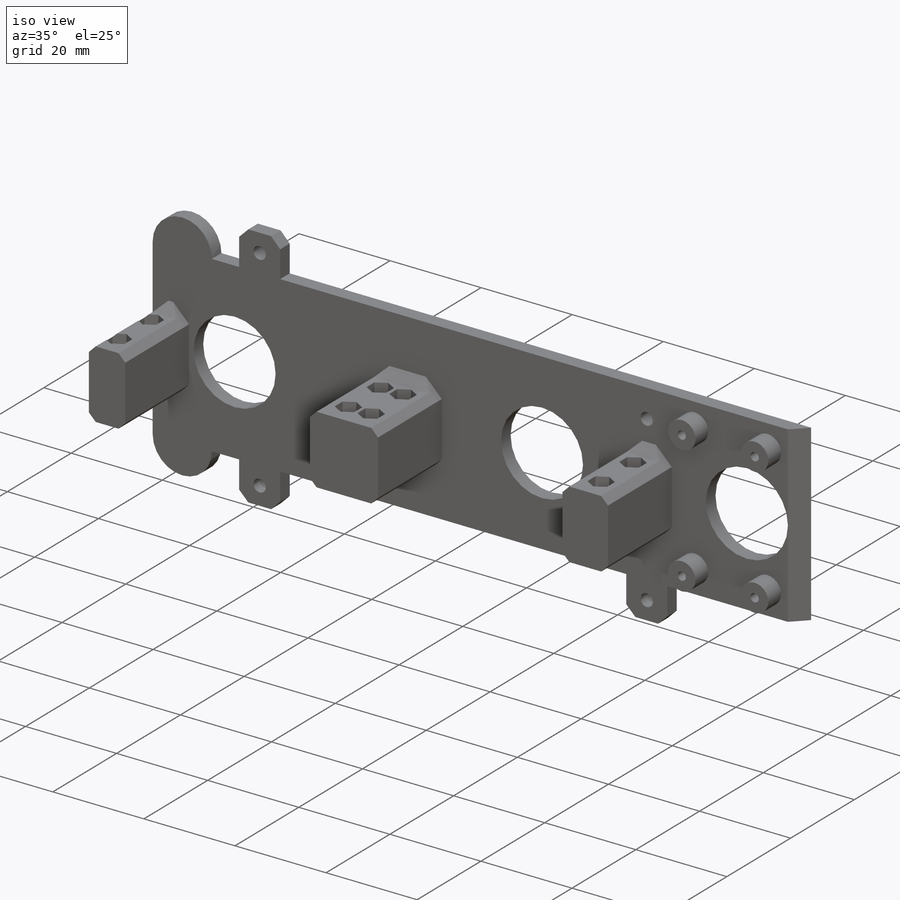
[diagram: iso view]
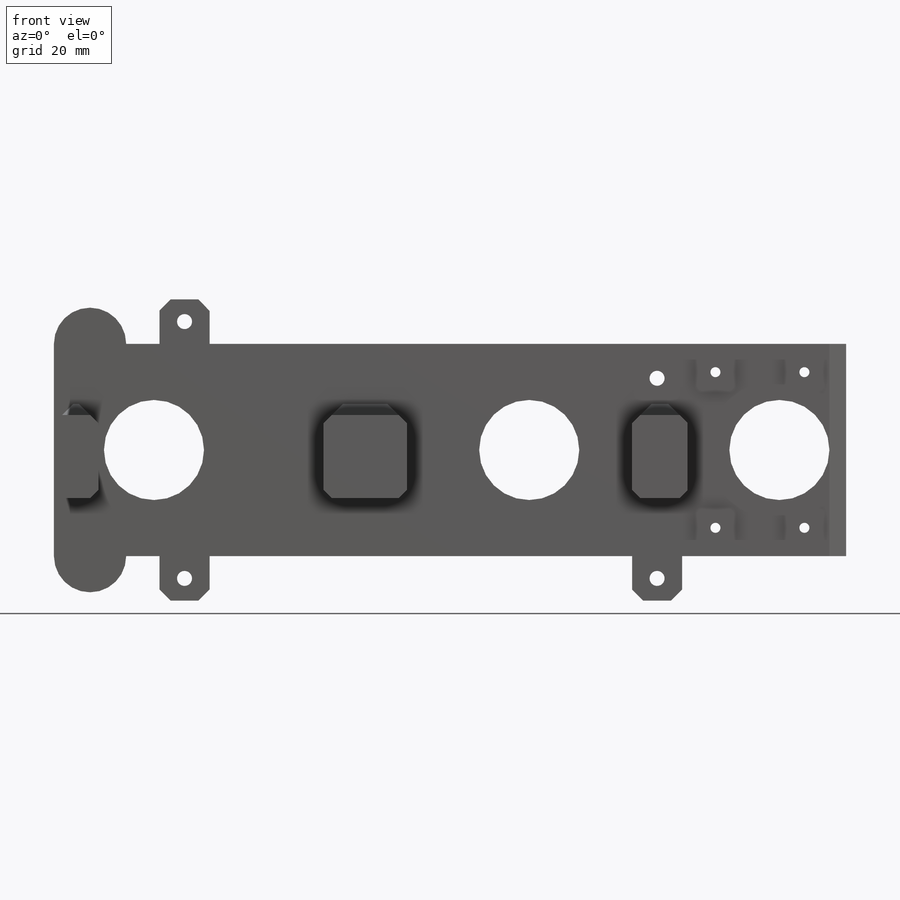
[diagram: front view]
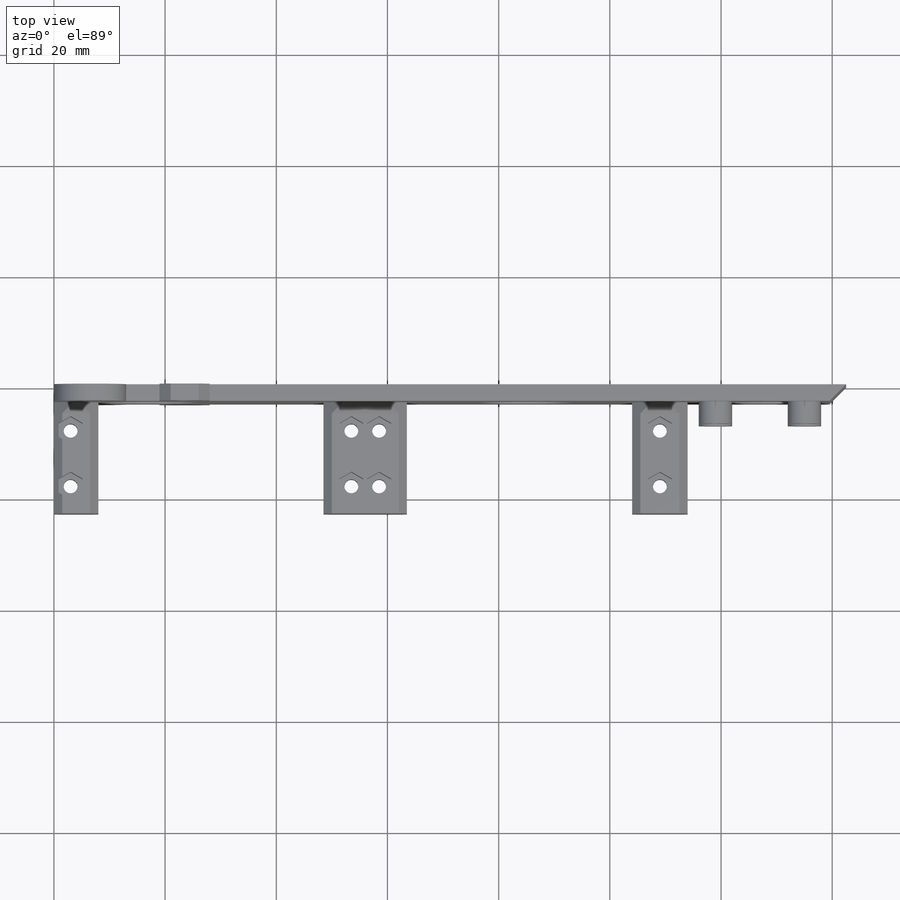
[diagram: top view]
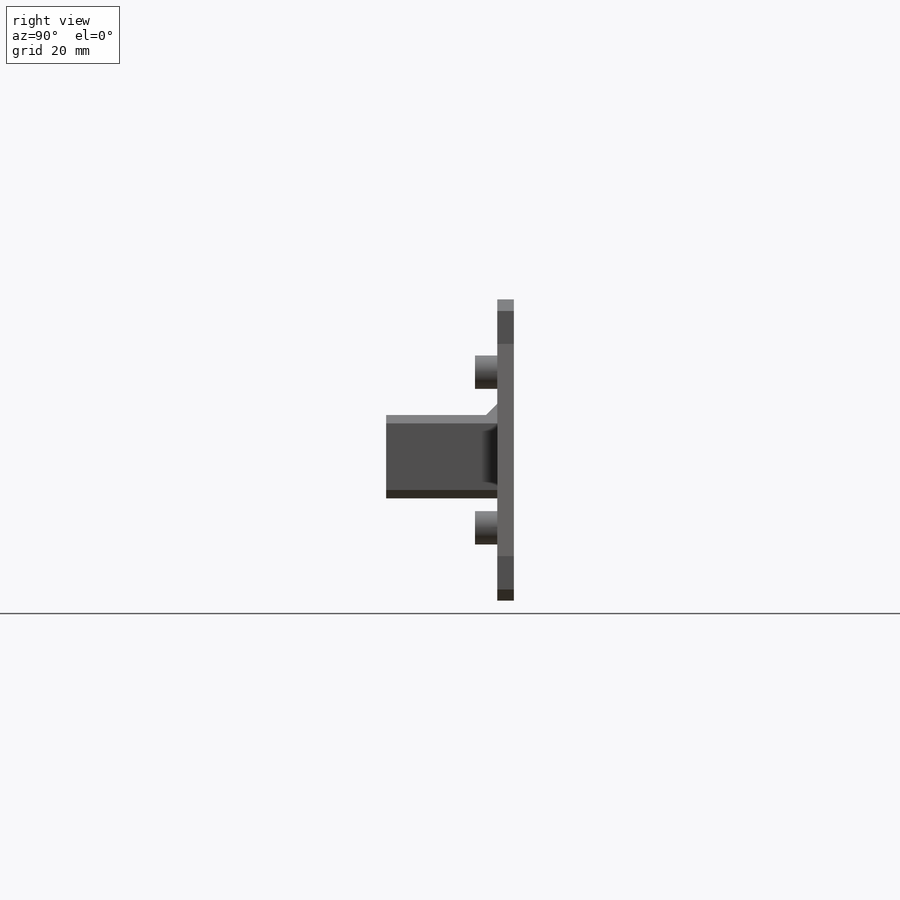
[diagram: right view]
SOLIDWORKS PART (.sldprt)
format: sldprt  version: not decoded by parser v0  size: 474,624 bytes
history: native  units: mm
features: sketch x7, cut_extrude x4, extrude x3, chamfer x3, material x1 (+13 scaffold rows collapsed)
feature tree (31):
  scaffold x13  (default folders/planes/origin — collapsed)
  material  "Material <not specified>"
  sketch  "Sketch1"
  extrude  "Boss-Extrude1"  Depth=3mm
  chamfer  "Chamfer1"  Distance=3mm Angle=45deg
  sketch  "Sketch2"
  sketch  "Sketch3"  dims[c1.D1=10.0mm c1.D2=15.0mm c1.D3=40.5mm c1.D4=40.5mm c1.D5=15.0mm c1.D6=27.8mm c1.D7=10.0mm c2.D1=4.5mm c2.D7=10.0mm]
  extrude  "Boss-Extrude2"  Depth=20mm
  sketch  "Sketch4"  dims[c1.D2=2.5mm c1.D1=5.0mm c2.D2=~5.601799mm c2.D3=5.0mm c2.D4=5.0mm c2.D5=5.0mm c2.D6=5.0mm]
  cut_extrude  "Cut-Extrude1"  [1 undecoded]
  chamfer  "Chamfer2"  Distance=1.5mm Angle=45deg
  sketch  "Sketch5"  dims[D1=4.3mm]
  cut_extrude  "Cut-Extrude2"  Depth=8mm
  cut_extrude  "Cut-Extrude3"  [1 undecoded]
  sketch  "Sketch6"  dims[D4=6.0mm D1=5.0mm D2=16.0mm D3=14.0mm]
  extrude  "Boss-Extrude3"  Depth=4mm
  sketch  "Sketch7"  dims[D1=1.8mm]
  cut_extrude  "Cut-Extrude4"  [1 undecoded]
  chamfer  "Chamfer3"  Distance=2mm Angle=45deg
decode coverage: 12 of 17 modeling features carry decoded parameters
note: ~ marks probable driven/reference dimensions
note: 3 parameter values undecoded
summary: no parameter record found for 3 features
note: suppression state not decoded; provenance and decode notes live in map.json
